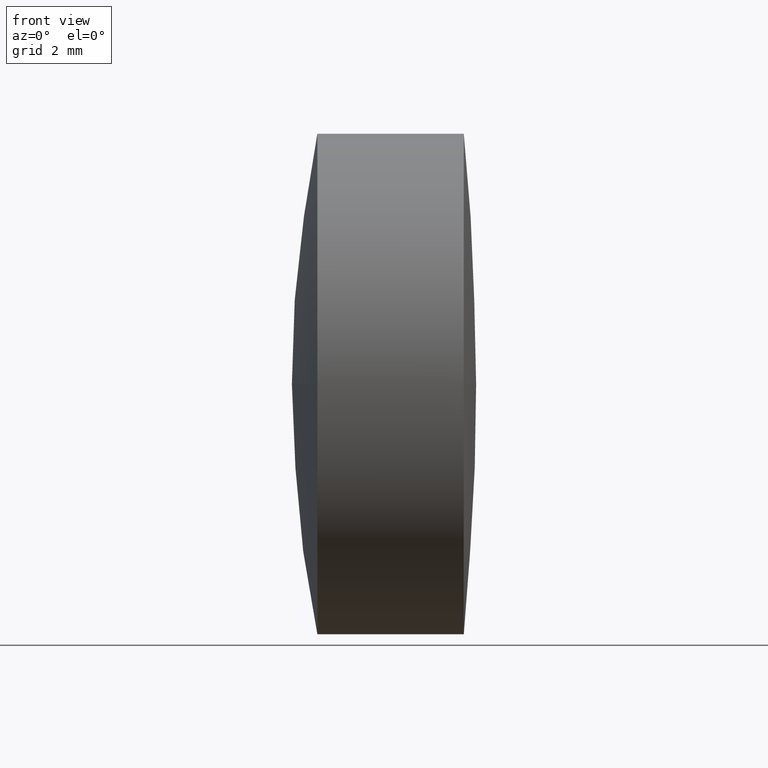
[diagram: clean part render]
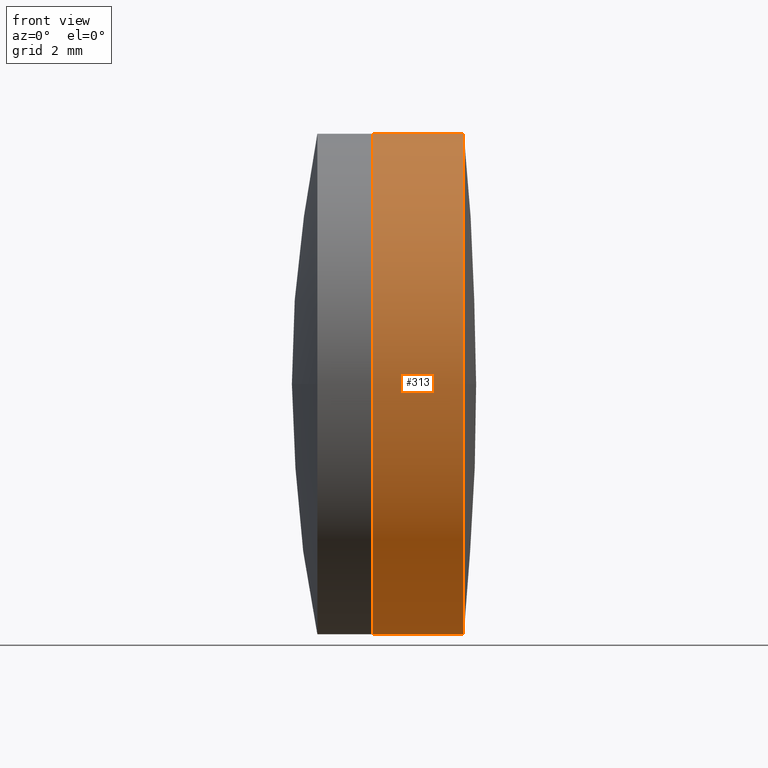
[diagram: same view with one face highlighted and labeled with its STEP entity id]
A machine part, front view. The second image highlights one B-rep face of the part: STEP entity #313.
In plain terms, the highlighted cylindrical surface (partial cylindrical patch) has radius 7.5 mm, axis along (-1, -0, -0).
Its self-contained STEP definition (entity closure, byte-faithful):
#5 = CIRCLE ( 'NONE', #161, 7.500000000000000000 ) ;
#18 = DIRECTION ( 'NONE',  ( -1.000000000000000000, -0.000000000000000000, -0.000000000000000000 ) ) ;
#45 = CARTESIAN_POINT ( 'NONE',  ( -84.31590303918355289, 10.13402828794794708, 7.500000000000000000 ) ) ;
#52 = EDGE_CURVE ( 'NONE', #352, #197, #414, .T. ) ;
#60 = VERTEX_POINT ( 'NONE', #391 ) ;
#62 = CYLINDRICAL_SURFACE ( 'NONE', #127, 7.500000000000000000 ) ;
#86 = AXIS2_PLACEMENT_3D ( 'NONE', #186, #253, #326 ) ;
#100 = CARTESIAN_POINT ( 'NONE',  ( -87.04354085552412812, 10.13402828794794708, 0.000000000000000000 ) ) ;
#109 = ORIENTED_EDGE ( 'NONE', *, *, #180, .F. ) ;
#112 = EDGE_CURVE ( 'NONE', #131, #352, #258, .T. ) ;
#114 = EDGE_LOOP ( 'NONE', ( #216, #247, #175, #438, #134, #109 ) ) ;
#127 = AXIS2_PLACEMENT_3D ( 'NONE', #305, #373, #140 ) ;
#131 = VERTEX_POINT ( 'NONE', #202 ) ;
#132 = EDGE_CURVE ( 'NONE', #413, #148, #278, .T. ) ;
#134 = ORIENTED_EDGE ( 'NONE', *, *, #132, .F. ) ;
#140 = DIRECTION ( 'NONE',  ( 0.000000000000000000, 0.000000000000000000, 1.000000000000000000 ) ) ;
#148 = VERTEX_POINT ( 'NONE', #351 ) ;
#155 = DIRECTION ( 'NONE',  ( -1.000000000000000000, -0.000000000000000000, -0.000000000000000000 ) ) ;
#161 = AXIS2_PLACEMENT_3D ( 'NONE', #392, #292, #223 ) ;
#175 = ORIENTED_EDGE ( 'NONE', *, *, #52, .T. ) ;
#180 = EDGE_CURVE ( 'NONE', #60, #413, #5, .T. ) ;
#186 = CARTESIAN_POINT ( 'NONE',  ( -84.31590303918355289, 10.13402828794794708, 0.000000000000000000 ) ) ;
#197 = VERTEX_POINT ( 'NONE', #45 ) ;
#202 = CARTESIAN_POINT ( 'NONE',  ( -84.31590303918355289, 10.13402828794794885, -7.500000000000000000 ) ) ;
#216 = ORIENTED_EDGE ( 'NONE', *, *, #422, .F. ) ;
#219 = CARTESIAN_POINT ( 'NONE',  ( -85.94668932278507611, 10.13402828794794708, 7.500000000000000000 ) ) ;
#223 = DIRECTION ( 'NONE',  ( 0.000000000000000000, 0.000000000000000000, 1.000000000000000000 ) ) ;
#231 = FACE_OUTER_BOUND ( 'NONE', #114, .T. ) ;
#247 = ORIENTED_EDGE ( 'NONE', *, *, #112, .T. ) ;
#252 = LINE ( 'NONE', #219, #269 ) ;
#253 = DIRECTION ( 'NONE',  ( -1.000000000000000000, -0.000000000000000000, -0.000000000000000000 ) ) ;
#255 = EDGE_CURVE ( 'NONE', #197, #148, #252, .T. ) ;
#258 = CIRCLE ( 'NONE', #354, 7.500000000000000000 ) ;
#269 = VECTOR ( 'NONE', #363, 1000.000000000000000 ) ;
#278 = CIRCLE ( 'NONE', #287, 7.500000000000000000 ) ;
#287 = AXIS2_PLACEMENT_3D ( 'NONE', #100, #18, #334 ) ;
#292 = DIRECTION ( 'NONE',  ( -1.000000000000000000, -0.000000000000000000, -0.000000000000000000 ) ) ;
#303 = VECTOR ( 'NONE', #412, 1000.000000000000000 ) ;
#305 = CARTESIAN_POINT ( 'NONE',  ( -85.94668932278507611, 10.13402828794794708, 0.000000000000000000 ) ) ;
#307 = CARTESIAN_POINT ( 'NONE',  ( -85.94668932278507611, 10.13402828794794885, -7.500000000000000000 ) ) ;
#312 = CARTESIAN_POINT ( 'NONE',  ( -84.31590303918355289, 10.13402828794794708, 0.000000000000000000 ) ) ;
#313 = ADVANCED_FACE ( 'NONE', ( #231 ), #62, .T. ) ;
#326 = DIRECTION ( 'NONE',  ( 0.000000000000000000, 0.000000000000000000, 1.000000000000000000 ) ) ;
#331 = DIRECTION ( 'NONE',  ( 0.000000000000000000, 0.000000000000000000, 1.000000000000000000 ) ) ;
#334 = DIRECTION ( 'NONE',  ( 0.000000000000000000, 0.000000000000000000, 1.000000000000000000 ) ) ;
#343 = LINE ( 'NONE', #307, #303 ) ;
#344 = CARTESIAN_POINT ( 'NONE',  ( -84.31590303918355289, 2.634028287948008806, -9.184850993605071031E-16 ) ) ;
#351 = CARTESIAN_POINT ( 'NONE',  ( -87.04354085552412812, 10.13402828794794708, 7.500000000000000000 ) ) ;
#352 = VERTEX_POINT ( 'NONE', #344 ) ;
#354 = AXIS2_PLACEMENT_3D ( 'NONE', #312, #155, #331 ) ;
#363 = DIRECTION ( 'NONE',  ( -1.000000000000000000, -0.000000000000000000, -0.000000000000000000 ) ) ;
#373 = DIRECTION ( 'NONE',  ( -1.000000000000000000, -0.000000000000000000, -0.000000000000000000 ) ) ;
#376 = CARTESIAN_POINT ( 'NONE',  ( -87.04354085552412812, 2.634028287947954183, -9.184850993605140056E-16 ) ) ;
#391 = CARTESIAN_POINT ( 'NONE',  ( -87.04354085552412812, 10.13402828794794885, -7.500000000000000000 ) ) ;
#392 = CARTESIAN_POINT ( 'NONE',  ( -87.04354085552412812, 10.13402828794794708, 0.000000000000000000 ) ) ;
#412 = DIRECTION ( 'NONE',  ( -1.000000000000000000, -0.000000000000000000, -0.000000000000000000 ) ) ;
#413 = VERTEX_POINT ( 'NONE', #376 ) ;
#414 = CIRCLE ( 'NONE', #86, 7.500000000000000000 ) ;
#422 = EDGE_CURVE ( 'NONE', #131, #60, #343, .T. ) ;
#438 = ORIENTED_EDGE ( 'NONE', *, *, #255, .T. ) ;